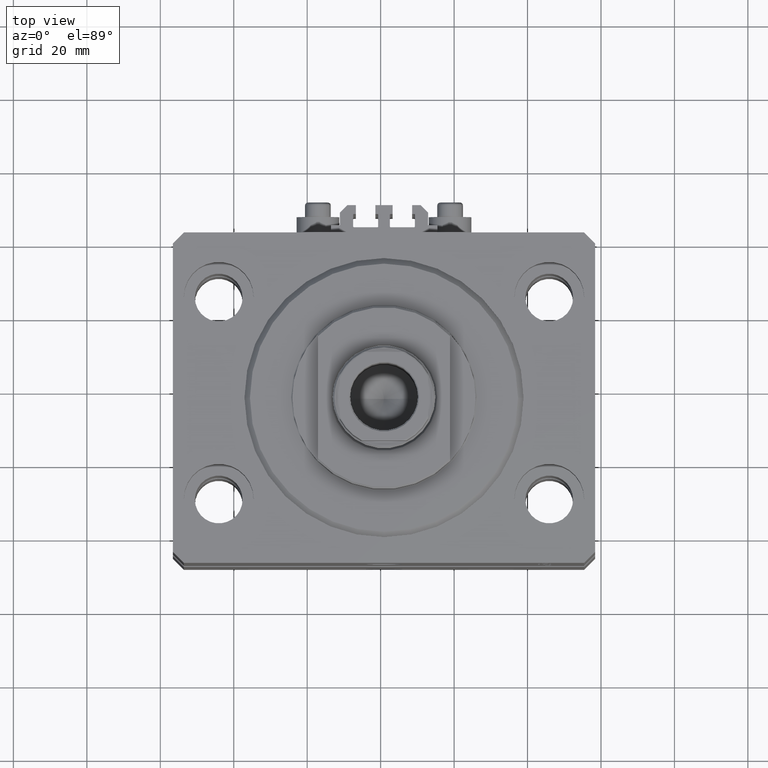
[diagram: clean part render]
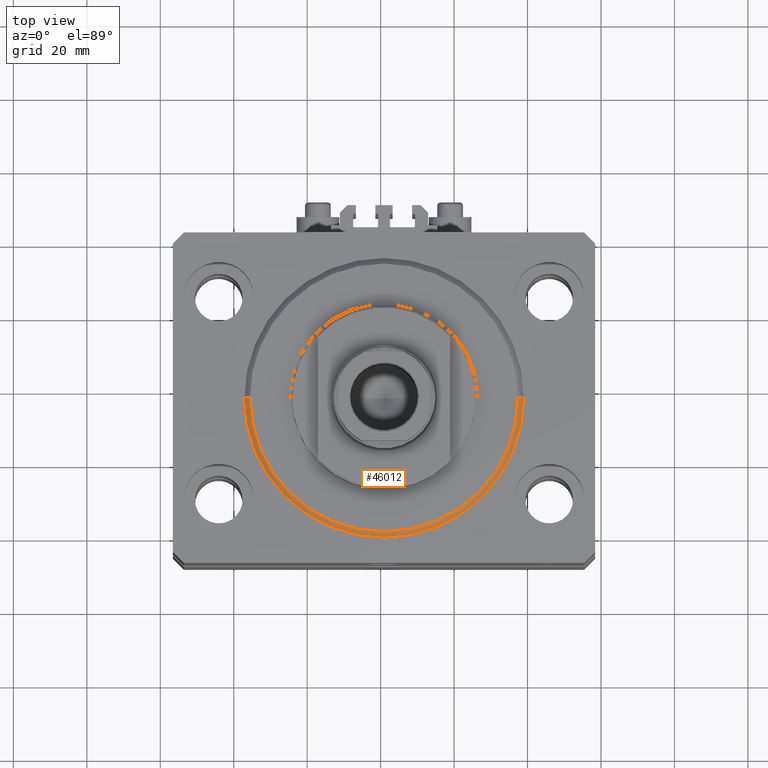
[diagram: same view with one face highlighted and labeled with its STEP entity id]
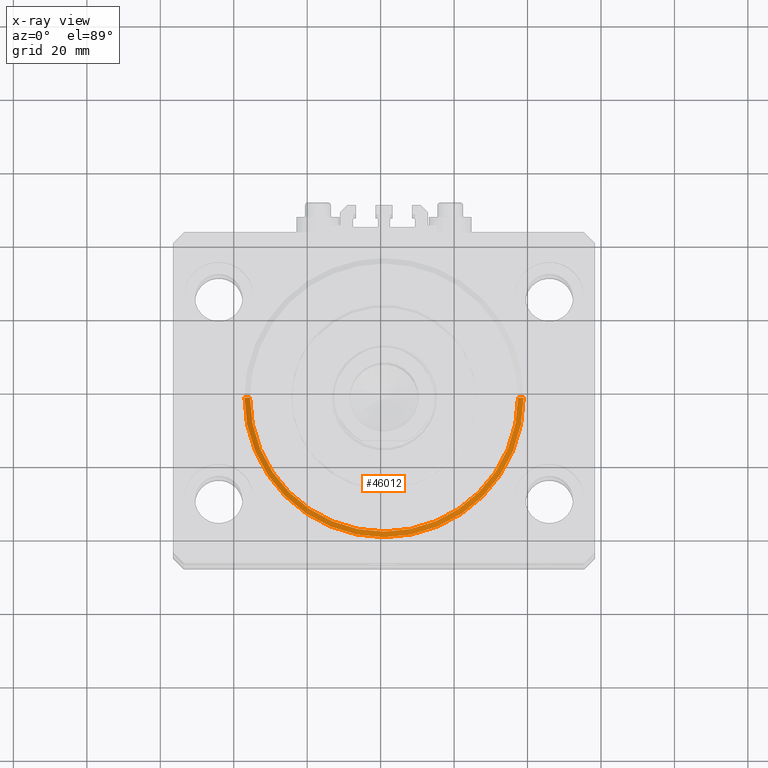
[diagram: x-ray of the same camera — body ghosted, the highlighted face saturated]
A machine part, top view. The second image highlights one B-rep face of the part: STEP entity #46012.
The next image is the same camera in x-ray: the body ghosted, the highlighted face saturated — about 0% of this face is hidden behind the body in this view.
In plain terms, the highlighted conical surface has half-angle 45 deg.
Its self-contained STEP definition (entity closure, byte-faithful):
#835 = CARTESIAN_POINT ( 'NONE',  ( -38.00000000000000000, 4.653657836759941941E-15, 1.499999999999994449 ) ) ;
#2040 = VERTEX_POINT ( 'NONE', #47456 ) ;
#5314 = AXIS2_PLACEMENT_3D ( 'NONE', #18775, #33950, #49125 ) ;
#9539 = DIRECTION ( 'NONE',  ( 0.7071067811865491270, 0.000000000000000000, 0.7071067811865459074 ) ) ;
#10563 = EDGE_LOOP ( 'NONE', ( #35998, #29798, #34988, #45398 ) ) ;
#13011 = DIRECTION ( 'NONE',  ( 1.000000000000000000, 0.000000000000000000, 0.000000000000000000 ) ) ;
#13258 = CARTESIAN_POINT ( 'NONE',  ( 0.000000000000000000, 0.000000000000000000, 0.000000000000000000 ) ) ;
#15218 = DIRECTION ( 'NONE',  ( 1.000000000000000000, 0.000000000000000000, 0.000000000000000000 ) ) ;
#15761 = LINE ( 'NONE', #835, #28230 ) ;
#18775 = CARTESIAN_POINT ( 'NONE',  ( 0.000000000000000000, 0.000000000000000000, 1.499999999999994449 ) ) ;
#19995 = CARTESIAN_POINT ( 'NONE',  ( 38.00000000000000000, 0.000000000000000000, 1.499999999999994449 ) ) ;
#21292 = CIRCLE ( 'NONE', #40373, 36.50000000000000000 ) ;
#23209 = EDGE_CURVE ( 'NONE', #36054, #2040, #21292, .T. ) ;
#23306 = CARTESIAN_POINT ( 'NONE',  ( -38.00000000000000000, 0.000000000000000000, 1.499999999999994449 ) ) ;
#26739 = CONICAL_SURFACE ( 'NONE', #5314, 38.00000000000000000, 0.7853981633974506105 ) ;
#27393 = FACE_OUTER_BOUND ( 'NONE', #10563, .T. ) ;
#28230 = VECTOR ( 'NONE', #46829, 1000.000000000000114 ) ;
#29798 = ORIENTED_EDGE ( 'NONE', *, *, #23209, .F. ) ;
#32115 = CIRCLE ( 'NONE', #36090, 38.00000000000000000 ) ;
#33950 = DIRECTION ( 'NONE',  ( -0.000000000000000000, -0.000000000000000000, 1.000000000000000000 ) ) ;
#34239 = CARTESIAN_POINT ( 'NONE',  ( 36.50000000000000000, 0.000000000000000000, 0.000000000000000000 ) ) ;
#34988 = ORIENTED_EDGE ( 'NONE', *, *, #37254, .T. ) ;
#35208 = VECTOR ( 'NONE', #9539, 1000.000000000000114 ) ;
#35998 = ORIENTED_EDGE ( 'NONE', *, *, #42879, .F. ) ;
#36054 = VERTEX_POINT ( 'NONE', #34239 ) ;
#36090 = AXIS2_PLACEMENT_3D ( 'NONE', #45094, #45562, #15218 ) ;
#36709 = VERTEX_POINT ( 'NONE', #49187 ) ;
#37254 = EDGE_CURVE ( 'NONE', #36054, #36709, #43126, .T. ) ;
#40337 = EDGE_CURVE ( 'NONE', #47155, #36709, #32115, .T. ) ;
#40373 = AXIS2_PLACEMENT_3D ( 'NONE', #13258, #46579, #13011 ) ;
#42879 = EDGE_CURVE ( 'NONE', #2040, #47155, #15761, .T. ) ;
#43126 = LINE ( 'NONE', #19995, #35208 ) ;
#45094 = CARTESIAN_POINT ( 'NONE',  ( 0.000000000000000000, 0.000000000000000000, 1.499999999999994449 ) ) ;
#45398 = ORIENTED_EDGE ( 'NONE', *, *, #40337, .F. ) ;
#45562 = DIRECTION ( 'NONE',  ( -0.000000000000000000, -0.000000000000000000, 1.000000000000000000 ) ) ;
#46012 = ADVANCED_FACE ( 'NONE', ( #27393 ), #26739, .T. ) ;
#46579 = DIRECTION ( 'NONE',  ( -0.000000000000000000, -0.000000000000000000, -1.000000000000000000 ) ) ;
#46829 = DIRECTION ( 'NONE',  ( -0.7071067811865491270, 8.659560562354953812E-17, 0.7071067811865459074 ) ) ;
#47155 = VERTEX_POINT ( 'NONE', #23306 ) ;
#47456 = CARTESIAN_POINT ( 'NONE',  ( -36.50000000000000000, 4.561809326823889791E-15, 0.000000000000000000 ) ) ;
#49125 = DIRECTION ( 'NONE',  ( 1.000000000000000000, 0.000000000000000000, 0.000000000000000000 ) ) ;
#49187 = CARTESIAN_POINT ( 'NONE',  ( 38.00000000000000000, 4.653657836759941941E-15, 1.499999999999994449 ) ) ;